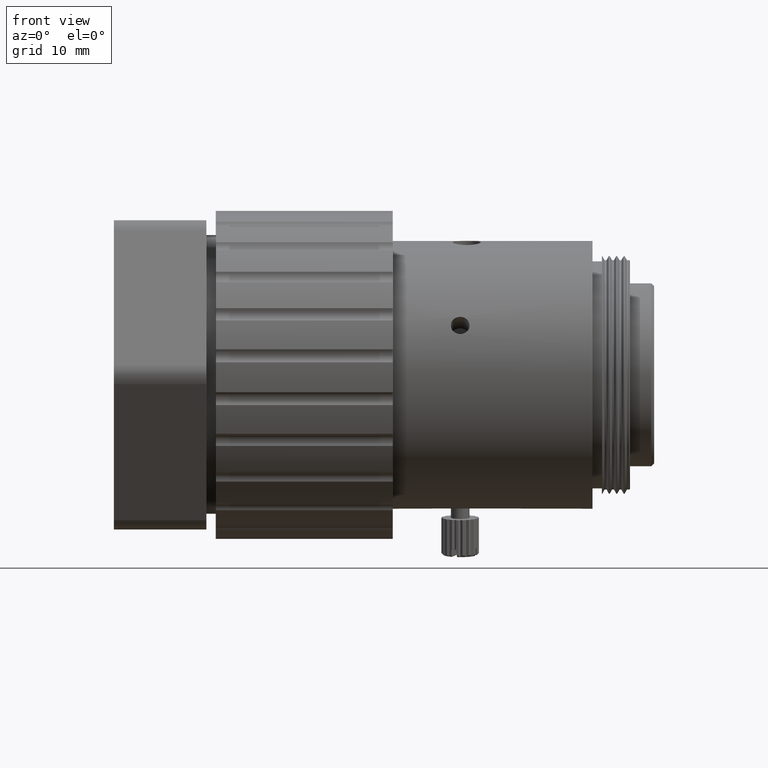
[diagram: clean part render]
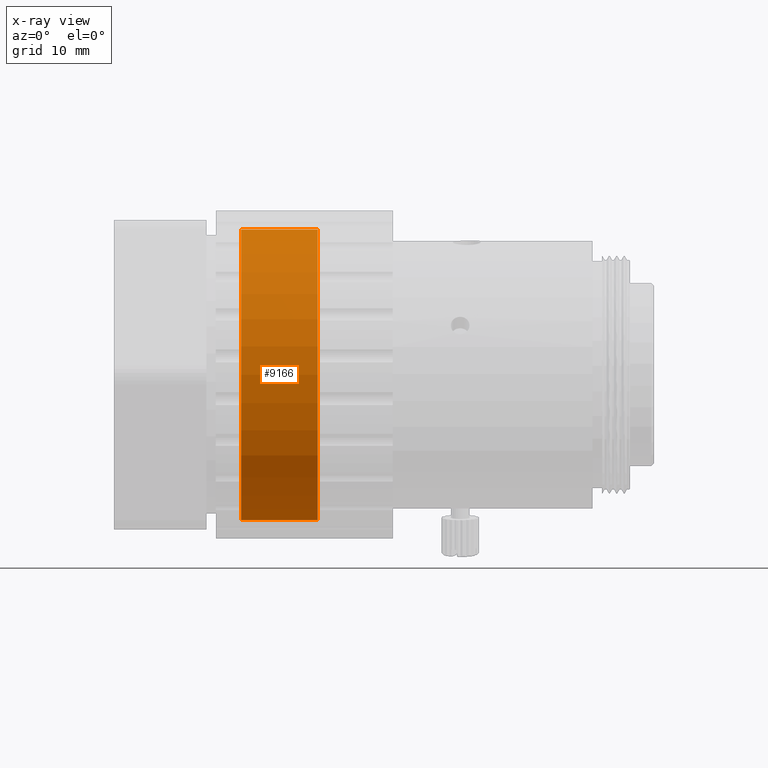
[diagram: x-ray — body ghosted, one internal face saturated and labeled with its STEP entity id]
A machine part, front view, then the same camera in x-ray: the body is ghosted and one INTERNAL B-rep face — a face not visible from any outside direction — is saturated and labeled: STEP entity #9166.
In plain terms, the highlighted cylindrical surface (bore or boss wall) has radius 15.5 mm, axis along (-1, -0, -0).
Its self-contained STEP definition (entity closure, byte-faithful):
#248 = EDGE_LOOP ( 'NONE', ( #2527 ) ) ;
#509 = DIRECTION ( 'NONE',  ( -1.000000000000000000, -0.000000000000000000, -0.000000000000000000 ) ) ;
#802 = FACE_OUTER_BOUND ( 'NONE', #13476, .T. ) ;
#1961 = FACE_OUTER_BOUND ( 'NONE', #248, .T. ) ;
#2527 = ORIENTED_EDGE ( 'NONE', *, *, #10928, .T. ) ;
#4247 = CARTESIAN_POINT ( 'NONE',  ( -24.21807053646762853, -6.762926249008316404, 8.881784197001252323E-13 ) ) ;
#4579 = ORIENTED_EDGE ( 'NONE', *, *, #14389, .T. ) ;
#4837 = CARTESIAN_POINT ( 'NONE',  ( -16.03862655694121742, -6.762926249008316404, 8.881784197001252323E-13 ) ) ;
#5255 = CARTESIAN_POINT ( 'NONE',  ( -24.21807053646762853, -6.762926249008316404, 15.49999999994744471 ) ) ;
#5491 = DIRECTION ( 'NONE',  ( 1.000000000000000000, 0.000000000000000000, 0.000000000000000000 ) ) ;
#5860 = DIRECTION ( 'NONE',  ( 0.000000000000000000, 0.000000000000000000, 1.000000000000000000 ) ) ;
#6177 = CIRCLE ( 'NONE', #14829, 15.49999999994655653 ) ;
#7096 = AXIS2_PLACEMENT_3D ( 'NONE', #11691, #15104, #11467 ) ;
#8481 = VERTEX_POINT ( 'NONE', #5255 ) ;
#8643 = VERTEX_POINT ( 'NONE', #13371 ) ;
#9166 = ADVANCED_FACE ( 'NONE', ( #1961, #802 ), #12858, .T. ) ;
#10928 = EDGE_CURVE ( 'NONE', #8481, #8481, #6177, .T. ) ;
#11467 = DIRECTION ( 'NONE',  ( 0.000000000000000000, 0.000000000000000000, 1.000000000000000000 ) ) ;
#11691 = CARTESIAN_POINT ( 'NONE',  ( -43.77015092836478516, -6.762926249008316404, 8.881784197001252323E-13 ) ) ;
#12155 = CIRCLE ( 'NONE', #13886, 15.49999999994655653 ) ;
#12858 = CYLINDRICAL_SURFACE ( 'NONE', #7096, 15.49999999994655653 ) ;
#13371 = CARTESIAN_POINT ( 'NONE',  ( -16.03862655694121742, -6.762926249008316404, 15.49999999994744471 ) ) ;
#13476 = EDGE_LOOP ( 'NONE', ( #4579 ) ) ;
#13755 = DIRECTION ( 'NONE',  ( 0.000000000000000000, 0.000000000000000000, 1.000000000000000000 ) ) ;
#13886 = AXIS2_PLACEMENT_3D ( 'NONE', #4837, #509, #5860 ) ;
#14389 = EDGE_CURVE ( 'NONE', #8643, #8643, #12155, .T. ) ;
#14829 = AXIS2_PLACEMENT_3D ( 'NONE', #4247, #5491, #13755 ) ;
#15104 = DIRECTION ( 'NONE',  ( -1.000000000000000000, -0.000000000000000000, -0.000000000000000000 ) ) ;